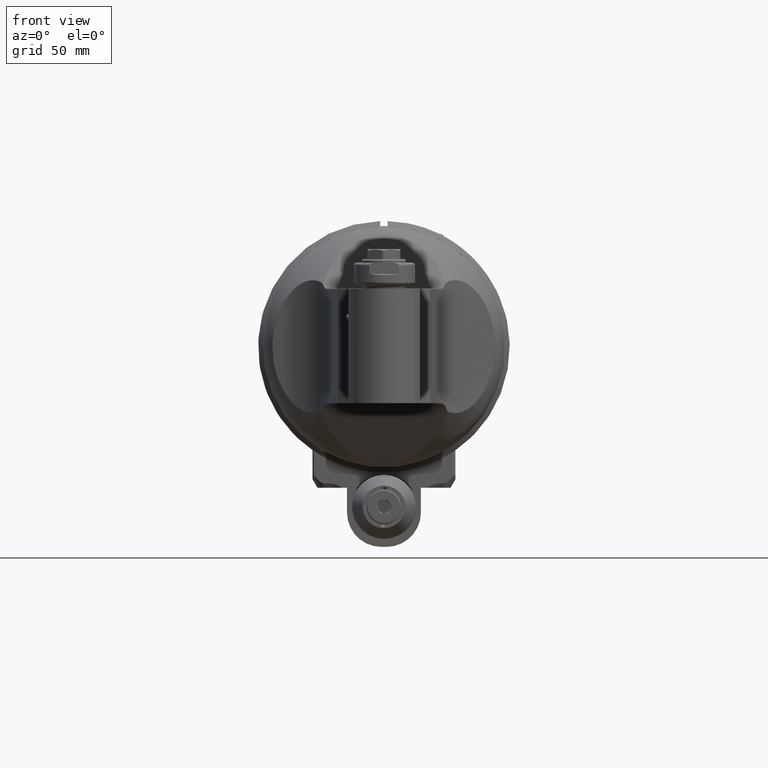
[diagram: clean part render]
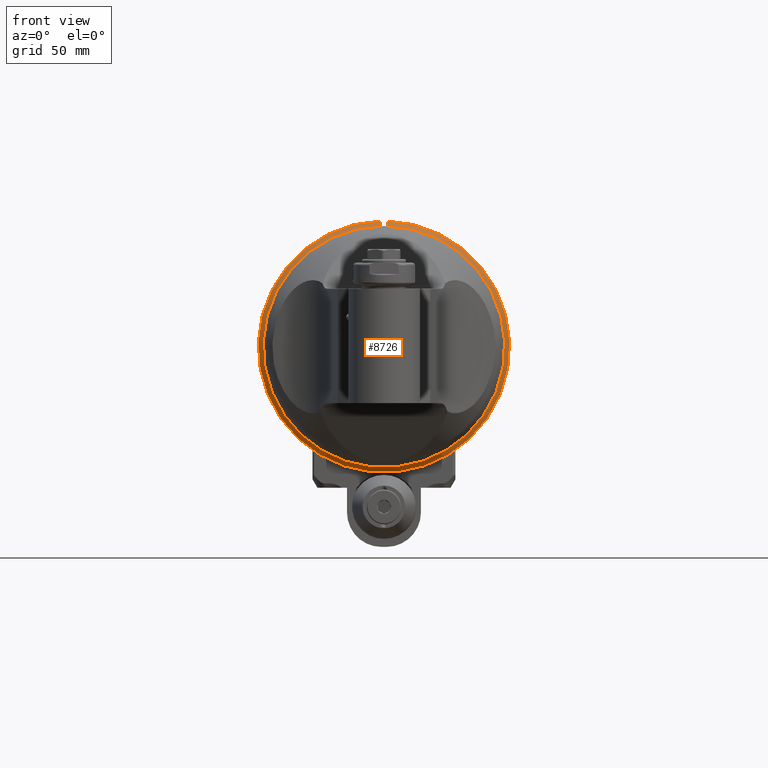
[diagram: same view with one face highlighted and labeled with its STEP entity id]
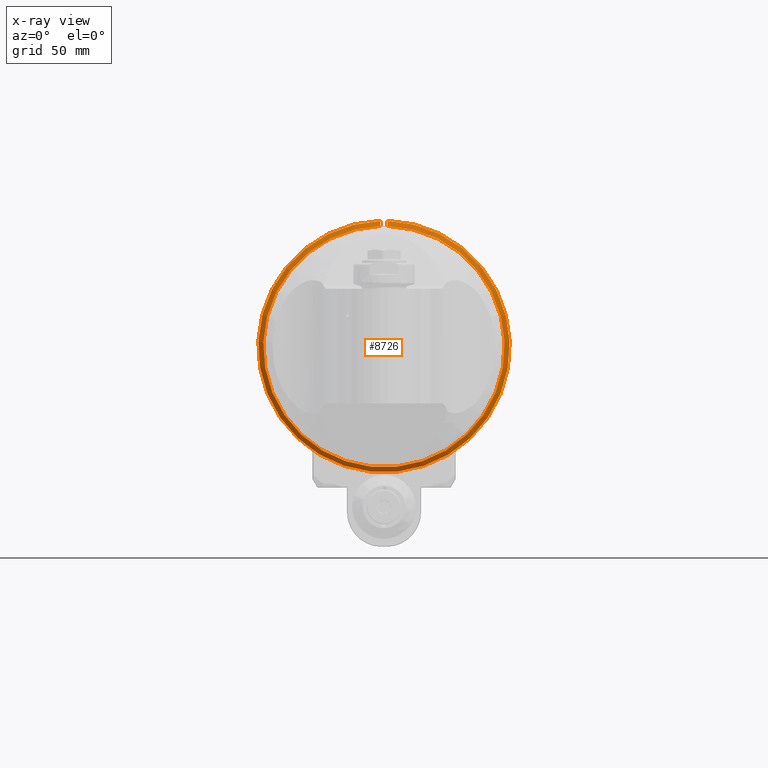
[diagram: x-ray of the same camera — body ghosted, the highlighted face saturated]
A machine part, front view. The second image highlights one B-rep face of the part: STEP entity #8726.
The next image is the same camera in x-ray: the body ghosted, the highlighted face saturated — about 0% of this face is hidden behind the body in this view.
In plain terms, the highlighted conical surface has half-angle 45 deg.
Its self-contained STEP definition (entity closure, byte-faithful):
#174=(
BOUNDED_CURVE()
B_SPLINE_CURVE(2,(#13096,#13097,#13098),.UNSPECIFIED.,.F.,.F.)
B_SPLINE_CURVE_WITH_KNOTS((3,3),(-0.564591459525085,-0.191486343836374),
 .UNSPECIFIED.)
CURVE()
GEOMETRIC_REPRESENTATION_ITEM()
RATIONAL_B_SPLINE_CURVE((1.00850972307627,1.00599717540352,1.00308912932))
REPRESENTATION_ITEM('')
);
#175=(
BOUNDED_CURVE()
B_SPLINE_CURVE(2,(#13101,#13102,#13103),.UNSPECIFIED.,.F.,.F.)
B_SPLINE_CURVE_WITH_KNOTS((3,3),(-5.67826879781681,-5.3051636821038),
 .UNSPECIFIED.)
CURVE()
GEOMETRIC_REPRESENTATION_ITEM()
RATIONAL_B_SPLINE_CURVE((1.00308912932,1.00599717540371,1.00850972307659))
REPRESENTATION_ITEM('')
);
#542=CONICAL_SURFACE('',#9330,50.,0.785398163397448);
#645=FACE_OUTER_BOUND('',#1184,.T.);
#1184=EDGE_LOOP('',(#5926,#5927,#5928,#5929));
#1803=CIRCLE('',#9325,51.);
#1808=CIRCLE('',#9331,49.);
#3670=VERTEX_POINT('',#13025);
#3671=VERTEX_POINT('',#13026);
#3677=VERTEX_POINT('',#13095);
#3678=VERTEX_POINT('',#13099);
#4563=EDGE_CURVE('',#3670,#3671,#1803,.T.);
#4573=EDGE_CURVE('',#3671,#3677,#174,.T.);
#4574=EDGE_CURVE('',#3678,#3677,#1808,.T.);
#4575=EDGE_CURVE('',#3678,#3670,#175,.T.);
#5926=ORIENTED_EDGE('',*,*,#4563,.T.);
#5927=ORIENTED_EDGE('',*,*,#4573,.T.);
#5928=ORIENTED_EDGE('',*,*,#4574,.F.);
#5929=ORIENTED_EDGE('',*,*,#4575,.T.);
#8726=ADVANCED_FACE('',(#645),#542,.T.);
#9325=AXIS2_PLACEMENT_3D('',#13027,#10345,#10346);
#9330=AXIS2_PLACEMENT_3D('',#13094,#10357,#10358);
#9331=AXIS2_PLACEMENT_3D('',#13100,#10359,#10360);
#10345=DIRECTION('center_axis',(0.,-1.,0.));
#10346=DIRECTION('ref_axis',(0.,0.,-1.));
#10357=DIRECTION('center_axis',(0.,1.,0.));
#10358=DIRECTION('ref_axis',(0.,0.,-1.));
#10359=DIRECTION('center_axis',(0.,-1.,0.));
#10360=DIRECTION('ref_axis',(0.,0.,-1.));
#13025=CARTESIAN_POINT('',(-1.5,2.,50.9779364039));
#13026=CARTESIAN_POINT('',(1.5,2.,50.9779364039));
#13027=CARTESIAN_POINT('Origin',(0.,2.,0.));
#13094=CARTESIAN_POINT('Origin',(0.,0.999999999999999,0.));
#13095=CARTESIAN_POINT('',(1.5,0.,48.97703543499));
#13096=CARTESIAN_POINT('Ctrl Pts',(1.5,2.00000000000212,50.9779364038979));
#13097=CARTESIAN_POINT('Ctrl Pts',(1.5,0.979981976849845,49.9574769100383));
#13098=CARTESIAN_POINT('Ctrl Pts',(1.5,2.10193140812418E-12,48.9770354349879));
#13099=CARTESIAN_POINT('',(-1.5,0.,48.97703543499));
#13100=CARTESIAN_POINT('Origin',(0.,0.,0.));
#13101=CARTESIAN_POINT('Ctrl Pts',(-1.5,2.07686229833848E-12,48.9770354349879));
#13102=CARTESIAN_POINT('Ctrl Pts',(-1.5,0.979981976913475,49.957476910102));
#13103=CARTESIAN_POINT('Ctrl Pts',(-1.5,2.00000000013466,50.9779364040305));